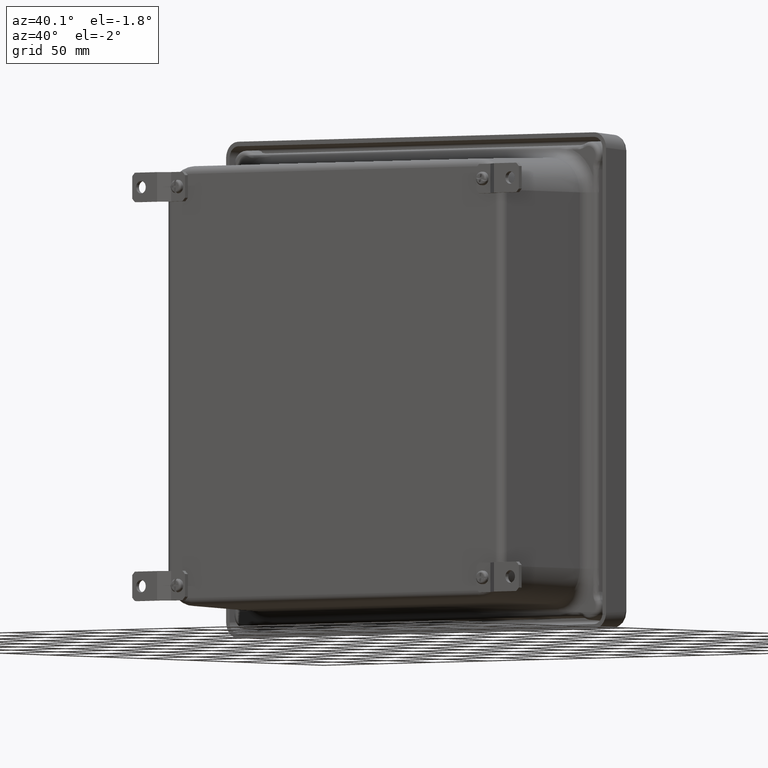
[diagram: clean part render]
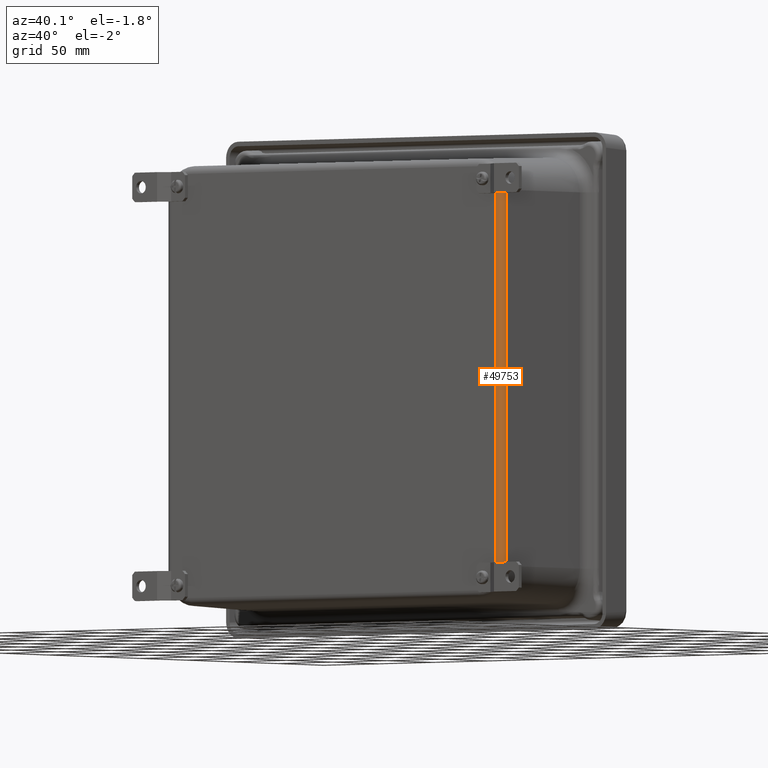
[diagram: same view with one face highlighted and labeled with its STEP entity id]
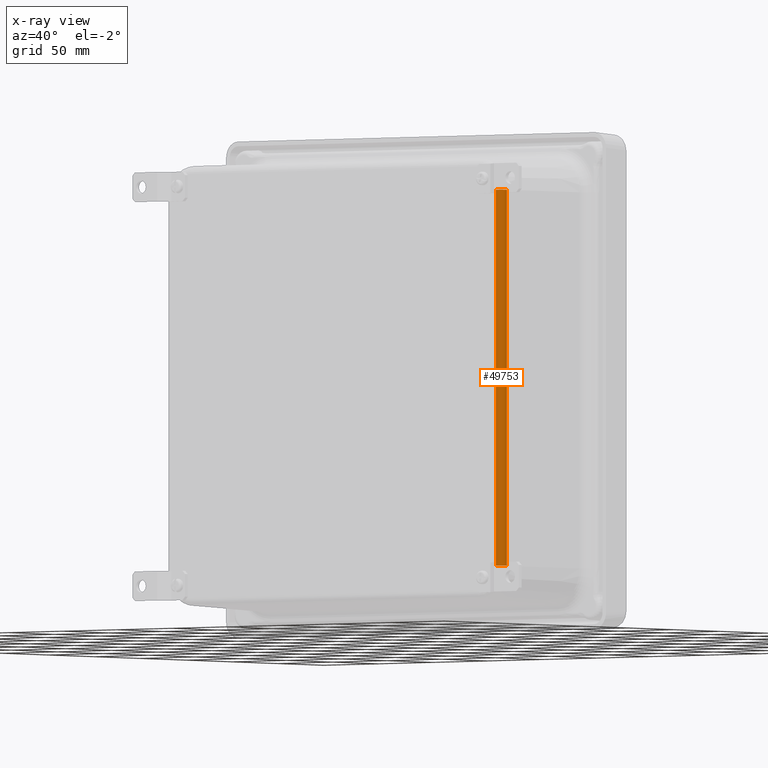
[diagram: x-ray of the same camera — body ghosted, the highlighted face saturated]
A machine part, auxiliary view. The second image highlights one B-rep face of the part: STEP entity #49753.
The next image is the same camera in x-ray: the body ghosted, the highlighted face saturated — about 0% of this face is hidden behind the body in this view.
In plain terms, the highlighted cylindrical surface (edge-blend (fillet) strip) has radius 5.5626 mm, axis along (-0, 0, -1).
Its self-contained STEP definition (entity closure, byte-faithful):
#834 = EDGE_CURVE ( 'NONE', #81108, #36986, #14387, .T. ) ;
#4132 = FACE_OUTER_BOUND ( 'NONE', #15469, .T. ) ;
#4533 = CARTESIAN_POINT ( 'NONE',  ( 5.860558715286007500, -3.905999999999999700, 5.198999999999999000 ) ) ;
#8507 = LINE ( 'NONE', #9599, #48475 ) ;
#9599 = CARTESIAN_POINT ( 'NONE',  ( 5.860558715286007500, -4.125000000000000000, 5.198999999999999000 ) ) ;
#9857 = ORIENTED_EDGE ( 'NONE', *, *, #834, .T. ) ;
#14387 = CIRCLE ( 'NONE', #71625, 0.2190000000000000300 ) ;
#14964 = ORIENTED_EDGE ( 'NONE', *, *, #30179, .T. ) ;
#15448 = VECTOR ( 'NONE', #25696, 39.37007874015748100 ) ;
#15469 = EDGE_LOOP ( 'NONE', ( #9857, #38945, #14964, #62865 ) ) ;
#16596 = EDGE_CURVE ( 'NONE', #81108, #62561, #26414, .T. ) ;
#21247 = AXIS2_PLACEMENT_3D ( 'NONE', #25788, #63248, #38622 ) ;
#25696 = DIRECTION ( 'NONE',  ( -1.050912865421913300E-016, -1.796542747822042800E-037, -1.000000000000000000 ) ) ;
#25788 = CARTESIAN_POINT ( 'NONE',  ( 5.860558715286006600, -3.905999999999999700, -5.198999999999999000 ) ) ;
#26414 = LINE ( 'NONE', #43586, #15448 ) ;
#28372 = CARTESIAN_POINT ( 'NONE',  ( 6.079456571679246600, -3.912687934392951500, -5.198999999999999000 ) ) ;
#30179 = EDGE_CURVE ( 'NONE', #74615, #62561, #73602, .T. ) ;
#33665 = CARTESIAN_POINT ( 'NONE',  ( 5.860558715286006600, -3.905999999999999700, 5.198999999999999000 ) ) ;
#35592 = CARTESIAN_POINT ( 'NONE',  ( 6.079456571679248400, -3.912687934392951500, 5.198999999999999000 ) ) ;
#36320 = DIRECTION ( 'NONE',  ( -1.000000000000000000, 0.0000000000000000000, 0.0000000000000000000 ) ) ;
#36986 = VERTEX_POINT ( 'NONE', #67272 ) ;
#38622 = DIRECTION ( 'NONE',  ( 1.000000000000000000, 0.0000000000000000000, 0.0000000000000000000 ) ) ;
#38945 = ORIENTED_EDGE ( 'NONE', *, *, #40816, .F. ) ;
#40816 = EDGE_CURVE ( 'NONE', #74615, #36986, #8507, .T. ) ;
#43586 = CARTESIAN_POINT ( 'NONE',  ( 6.079456571679248400, -3.912687934392951000, 5.198999999999999000 ) ) ;
#46521 = DIRECTION ( 'NONE',  ( -1.000000000000000000, 0.0000000000000000000, 0.0000000000000000000 ) ) ;
#48475 = VECTOR ( 'NONE', #79435, 39.37007874015748100 ) ;
#49753 = ADVANCED_FACE ( 'NONE', ( #4132 ), #66075, .T. ) ;
#61783 = DIRECTION ( 'NONE',  ( -1.050912865421913600E-016, 0.0000000000000000000, -1.000000000000000000 ) ) ;
#62561 = VERTEX_POINT ( 'NONE', #28372 ) ;
#62865 = ORIENTED_EDGE ( 'NONE', *, *, #16596, .F. ) ;
#63248 = DIRECTION ( 'NONE',  ( 0.0000000000000000000, 0.0000000000000000000, 1.000000000000000000 ) ) ;
#64934 = AXIS2_PLACEMENT_3D ( 'NONE', #4533, #61783, #36320 ) ;
#65186 = CARTESIAN_POINT ( 'NONE',  ( 5.860558715286006600, -4.125000000000000000, -5.198999999999999000 ) ) ;
#66075 = CYLINDRICAL_SURFACE ( 'NONE', #64934, 0.2190000000000000300 ) ;
#67272 = CARTESIAN_POINT ( 'NONE',  ( 5.860558715286007500, -4.125000000000000000, 5.198999999999999000 ) ) ;
#71625 = AXIS2_PLACEMENT_3D ( 'NONE', #33665, #78405, #46521 ) ;
#73602 = CIRCLE ( 'NONE', #21247, 0.2190000000000000300 ) ;
#74615 = VERTEX_POINT ( 'NONE', #65186 ) ;
#78405 = DIRECTION ( 'NONE',  ( 0.0000000000000000000, 0.0000000000000000000, -1.000000000000000000 ) ) ;
#79435 = DIRECTION ( 'NONE',  ( 1.050912865421913600E-016, -0.0000000000000000000, 1.000000000000000000 ) ) ;
#81108 = VERTEX_POINT ( 'NONE', #35592 ) ;